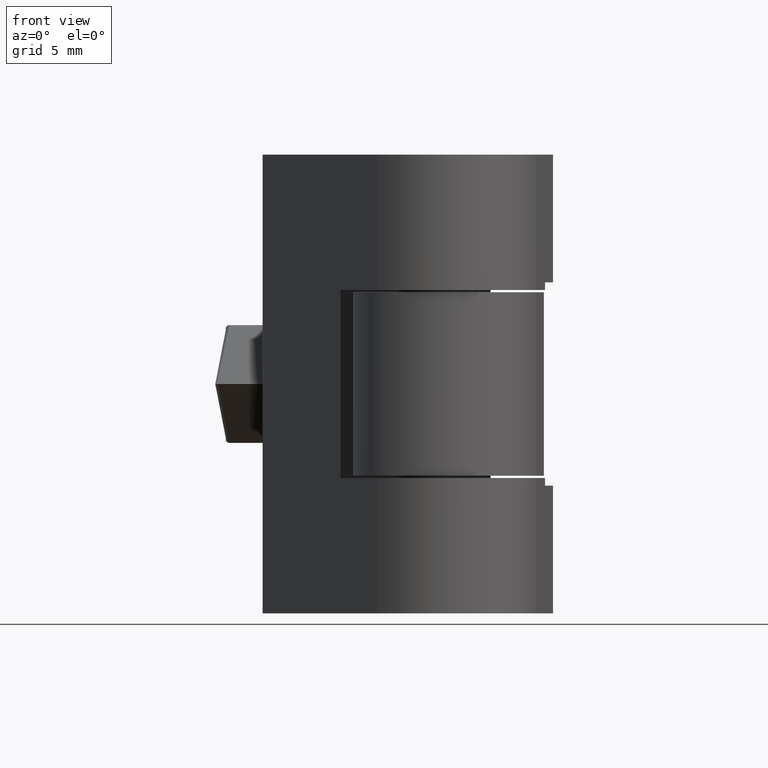
[diagram: clean part render]
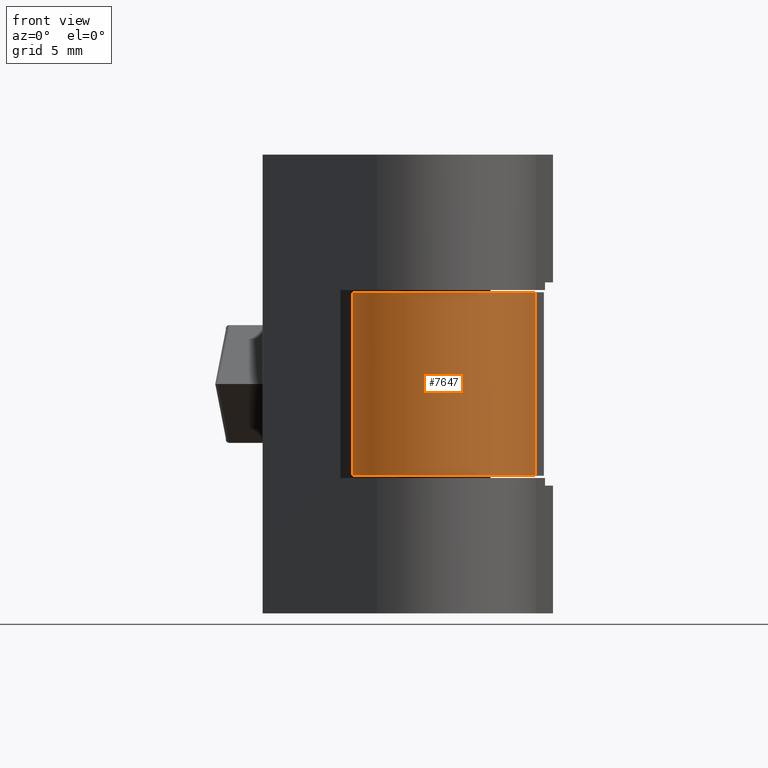
[diagram: same view with one face highlighted and labeled with its STEP entity id]
A machine part, front view. The second image highlights one B-rep face of the part: STEP entity #7647.
In plain terms, the highlighted face is a freeform B-spline surface patch.
Its self-contained STEP definition (entity closure, byte-faithful):
#7166=CARTESIAN_POINT('',(5.958934399568810,0.799212784880096,9.000000427479060));
#7167=VERTEX_POINT('',#7166);
#7173=CARTESIAN_POINT('',(-5.999666316343970,1.563334262183135,9.000000427479060));
#7174=VERTEX_POINT('',#7173);
#7175=CARTESIAN_POINT('',(5.958934399568806,0.799212784880096,9.000000427479060));
#7176=CARTESIAN_POINT('',(5.294507663427094,-4.850540699839542,9.000000427479060));
#7177=CARTESIAN_POINT('',(-0.382603269738605,-4.487789023989380,9.000000427479060));
#7178=CARTESIAN_POINT('',(-6.059714202904306,-4.125037348139217,9.000000427479060));
#7179=CARTESIAN_POINT('',(-5.999666316343970,1.563334262183135,9.000000427479060));
#7187=(BOUNDED_CURVE()B_SPLINE_CURVE(2,(#7175,#7176,#7177,#7178,#7179),.UNSPECIFIED.,.F.,.U.)B_SPLINE_CURVE_WITH_KNOTS((3,2,3),(0.0,0.500000000000000,1.0),.UNSPECIFIED.)CURVE()GEOMETRIC_REPRESENTATION_ITEM()RATIONAL_B_SPLINE_CURVE((1.0,0.725682238087649,1.0,0.725682238087649,1.0))REPRESENTATION_ITEM(''));
#7188=EDGE_CURVE('',#7167,#7174,#7187,.T.);
#7400=CARTESIAN_POINT('',(-5.999666316343970,1.563334262183135,21.000000997448051));
#7401=VERTEX_POINT('',#7400);
#7415=CARTESIAN_POINT('',(5.958934399568810,0.799212784880096,21.000000997448051));
#7416=VERTEX_POINT('',#7415);
#7417=CARTESIAN_POINT('',(5.958934399568806,0.799212784880096,21.000000997448051));
#7418=CARTESIAN_POINT('',(5.294507663427094,-4.850540699839542,21.000000997448044));
#7419=CARTESIAN_POINT('',(-0.382603269738605,-4.487789023989380,21.000000997448051));
#7420=CARTESIAN_POINT('',(-6.059714202904306,-4.125037348139217,21.000000997448044));
#7421=CARTESIAN_POINT('',(-5.999666316343970,1.563334262183135,21.000000997448051));
#7429=(BOUNDED_CURVE()B_SPLINE_CURVE(2,(#7417,#7418,#7419,#7420,#7421),.UNSPECIFIED.,.F.,.U.)B_SPLINE_CURVE_WITH_KNOTS((3,2,3),(0.0,0.500000000000000,1.0),.UNSPECIFIED.)CURVE()GEOMETRIC_REPRESENTATION_ITEM()RATIONAL_B_SPLINE_CURVE((1.0,0.725682238087649,1.0,0.725682238087649,1.0))REPRESENTATION_ITEM(''));
#7430=EDGE_CURVE('',#7416,#7401,#7429,.T.);
#7611=CARTESIAN_POINT('',(5.958934399568810,0.799212784880096,21.000000997448051));
#7612=CARTESIAN_POINT('',(5.958934399568810,0.799212784880096,9.000000427479060));
#7613=QUASI_UNIFORM_CURVE('',1,(#7611,#7612),.UNSPECIFIED.,.F.,.U.);
#7614=EDGE_CURVE('',#7416,#7167,#7613,.T.);
#7619=CARTESIAN_POINT('',(-5.991193175464862,1.824975735705393,21.300001011697280));
#7620=CARTESIAN_POINT('',(-5.991193175464862,1.824975735705393,8.692500412873603));
#7621=CARTESIAN_POINT('',(-6.313345194813856,-4.114161105799613,21.300001011697272));
#7622=CARTESIAN_POINT('',(-6.313345194813856,-4.114161105799613,8.692500412873603));
#7623=CARTESIAN_POINT('',(-0.377245768473965,-4.488128947063937,21.300001011697280));
#7624=CARTESIAN_POINT('',(-0.377245768473965,-4.488128947063937,8.692500412873603));
#7625=CARTESIAN_POINT('',(5.558853657865926,-4.862096788328262,21.300001011697272));
#7626=CARTESIAN_POINT('',(5.558853657865926,-4.862096788328262,8.692500412873603));
#7627=CARTESIAN_POINT('',(5.984608841946594,1.070513165892657,21.300001011697280));
#7628=CARTESIAN_POINT('',(5.984608841946594,1.070513165892657,8.692500412873603));
#7636=(BOUNDED_SURFACE()B_SPLINE_SURFACE(1,2,((#7619,#7621,#7623,#7625,#7627),(#7620,#7622,#7624,#7626,#7628)),.UNSPECIFIED.,.F.,.F.,.U.)B_SPLINE_SURFACE_WITH_KNOTS((2,2),(3,2,3),(0.0,12.607500598823680),(0.0,9.879837841157423,19.759675682314850),.UNSPECIFIED.)GEOMETRIC_REPRESENTATION_ITEM()RATIONAL_B_SPLINE_SURFACE(((1.0,0.710185375623286,1.0,0.710185375623286,1.0),(1.0,0.710185375623286,1.0,0.710185375623286,1.0)))REPRESENTATION_ITEM('')SURFACE());
#7637=ORIENTED_EDGE('',*,*,#7188,.F.);
#7638=ORIENTED_EDGE('',*,*,#7614,.F.);
#7639=ORIENTED_EDGE('',*,*,#7430,.T.);
#7640=CARTESIAN_POINT('',(-5.999666316343970,1.563334262183135,21.000000997448051));
#7641=CARTESIAN_POINT('',(-5.999666316343970,1.563334262183135,9.000000427479060));
#7642=QUASI_UNIFORM_CURVE('',1,(#7640,#7641),.UNSPECIFIED.,.F.,.U.);
#7643=EDGE_CURVE('',#7401,#7174,#7642,.T.);
#7644=ORIENTED_EDGE('',*,*,#7643,.T.);
#7645=EDGE_LOOP('',(#7637,#7638,#7639,#7644));
#7646=FACE_OUTER_BOUND('',#7645,.T.);
#7647=ADVANCED_FACE('',(#7646),#7636,.T.);